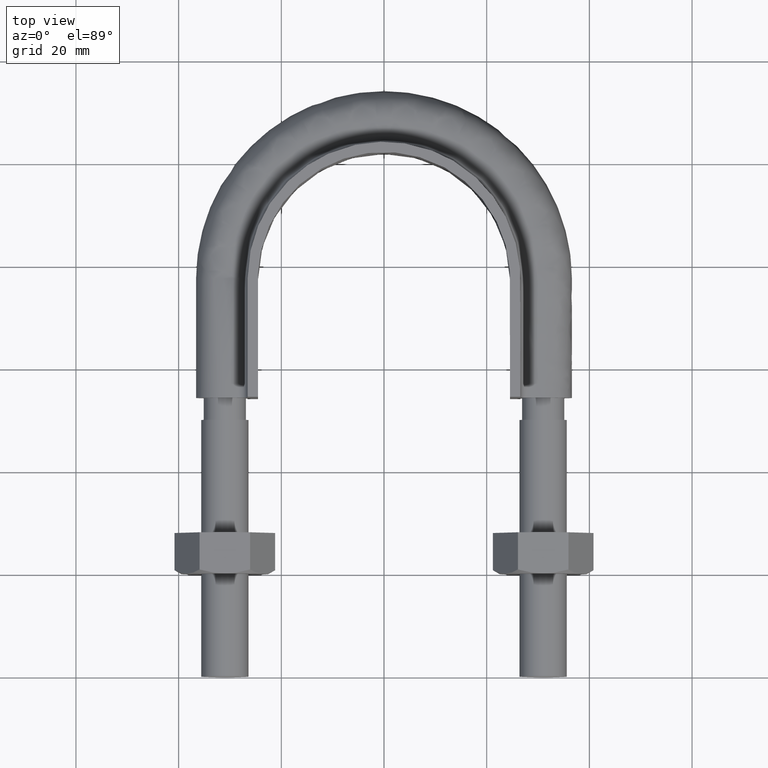
[diagram: clean part render]
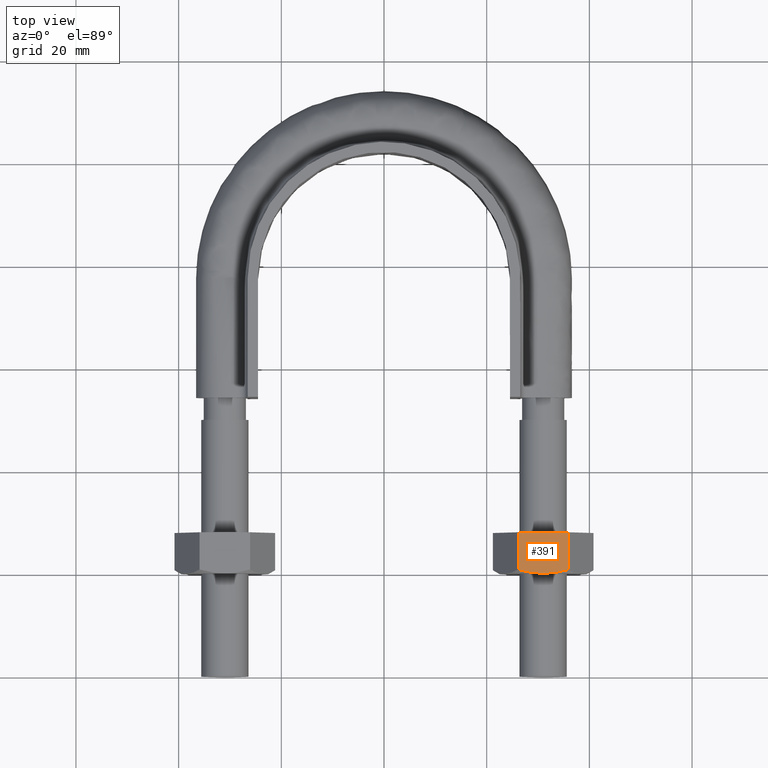
[diagram: same view with one face highlighted and labeled with its STEP entity id]
A machine part, top view. The second image highlights one B-rep face of the part: STEP entity #391.
In plain terms, the highlighted planar face has unit normal (-0, 0, -1).
Its self-contained STEP definition (entity closure, byte-faithful):
#391 = ADVANCED_FACE( '', ( #564 ), #565, .F. );
#564 = FACE_OUTER_BOUND( '', #1563, .T. );
#565 = PLANE( '', #1564 );
#1563 = EDGE_LOOP( '', ( #2096, #2097, #2098, #2099, #2100 ) );
#1564 = AXIS2_PLACEMENT_3D( '', #2101, #2102, #2103 );
#2096 = ORIENTED_EDGE( '', *, *, #2225, .F. );
#2097 = ORIENTED_EDGE( '', *, *, #2244, .F. );
#2098 = ORIENTED_EDGE( '', *, *, #2260, .F. );
#2099 = ORIENTED_EDGE( '', *, *, #2262, .F. );
#2100 = ORIENTED_EDGE( '', *, *, #2221, .F. );
#2101 = CARTESIAN_POINT( '', ( 26.0925227118907, 27.9999999999973, 8.50000000000144 ) );
#2102 = DIRECTION( '', ( -2.90767410149328E-013, 3.06151588455666E-016, -1.00000000000000 ) );
#2103 = DIRECTION( '', ( -1.00000000000000, 0.000000000000000, 2.90767410149328E-013 ) );
#2221 = EDGE_CURVE( '', #2446, #2448, #2449, .T. );
#2225 = EDGE_CURVE( '', #2454, #2446, #2456, .T. );
#2244 = EDGE_CURVE( '', #2484, #2454, #2486, .T. );
#2260 = EDGE_CURVE( '', #2508, #2484, #2510, .F. );
#2262 = EDGE_CURVE( '', #2448, #2508, #2512, .T. );
#2446 = VERTEX_POINT( '', #3037 );
#2448 = VERTEX_POINT( '', #3039 );
#2449 = LINE( '', #3040, #3041 );
#2454 = VERTEX_POINT( '', #3047 );
#2456 = B_SPLINE_CURVE_WITH_KNOTS( '', 3, ( #3049, #3050, #3051, #3052, #3053, #3054 ), .UNSPECIFIED., .F., .F., ( 4, 2, 4 ), ( 1.43048962453820E-017, 0.00246745482903607, 0.00493490965807213 ), .UNSPECIFIED. );
#2484 = VERTEX_POINT( '', #3106 );
#2486 = B_SPLINE_CURVE_WITH_KNOTS( '', 3, ( #3108, #3109, #3110, #3111, #3112, #3113 ), .UNSPECIFIED., .F., .F., ( 4, 2, 4 ), ( 2.79715755706988E-017, 0.00246745482903608, 0.00493490965807214 ), .UNSPECIFIED. );
#2508 = VERTEX_POINT( '', #3152 );
#2510 = LINE( '', #3154, #3155 );
#2512 = LINE( '', #3157, #3158 );
#3037 = CARTESIAN_POINT( '', ( 26.1225006406996, 20.7505553499438, 8.50000000000143 ) );
#3039 = CARTESIAN_POINT( '', ( 26.1225006406996, 27.9999999999973, 8.50000000000143 ) );
#3040 = CARTESIAN_POINT( '', ( 26.1225006406996, 27.9999999999973, 8.50000000000143 ) );
#3041 = VECTOR( '', #3321, 1000.00000000000 );
#3047 = CARTESIAN_POINT( '', ( 31.0000000000025, 19.9999999999973, 8.50000000000001 ) );
#3049 = CARTESIAN_POINT( '', ( 31.0000000000025, 19.9999999999973, 8.50000000000001 ) );
#3050 = CARTESIAN_POINT( '', ( 30.1678340498118, 19.9999999999973, 8.50000000000025 ) );
#3051 = CARTESIAN_POINT( '', ( 29.3466937523168, 20.0716504305263, 8.50000000000049 ) );
#3052 = CARTESIAN_POINT( '', ( 27.7225568243396, 20.3328582843680, 8.50000000000096 ) );
#3053 = CARTESIAN_POINT( '', ( 26.9194282933252, 20.5215585493629, 8.50000000000120 ) );
#3054 = CARTESIAN_POINT( '', ( 26.1225006406996, 20.7505553499438, 8.50000000000143 ) );
#3106 = CARTESIAN_POINT( '', ( 35.8774993593054, 20.7505553499438, 8.49999999999859 ) );
#3108 = CARTESIAN_POINT( '', ( 35.8774993593054, 20.7505553499438, 8.49999999999859 ) );
#3109 = CARTESIAN_POINT( '', ( 35.0805717066798, 20.5215585493630, 8.49999999999882 ) );
#3110 = CARTESIAN_POINT( '', ( 34.2774431756653, 20.3328582843680, 8.49999999999906 ) );
#3111 = CARTESIAN_POINT( '', ( 32.6533062476882, 20.0716504305263, 8.49999999999953 ) );
#3112 = CARTESIAN_POINT( '', ( 31.8321659501932, 19.9999999999973, 8.49999999999977 ) );
#3113 = CARTESIAN_POINT( '', ( 31.0000000000025, 19.9999999999973, 8.50000000000001 ) );
#3152 = CARTESIAN_POINT( '', ( 35.8774993593053, 27.9999999999973, 8.49999999999859 ) );
#3154 = CARTESIAN_POINT( '', ( 35.8774993593053, 27.9999999999973, 8.49999999999859 ) );
#3155 = VECTOR( '', #3388, 1000.00000000000 );
#3157 = CARTESIAN_POINT( '', ( 35.9000000000025, 27.9999999999973, 8.49999999999859 ) );
#3158 = VECTOR( '', #3392, 1000.00000000000 );
#3321 = DIRECTION( '', ( 2.44921270764476E-016, 1.00000000000000, 3.06151588455594E-016 ) );
#3388 = DIRECTION( '', ( 2.44921270764476E-016, 1.00000000000000, 3.06151588455594E-016 ) );
#3392 = DIRECTION( '', ( 1.00000000000000, -2.44921270764386E-016, -2.90767410149328E-013 ) );